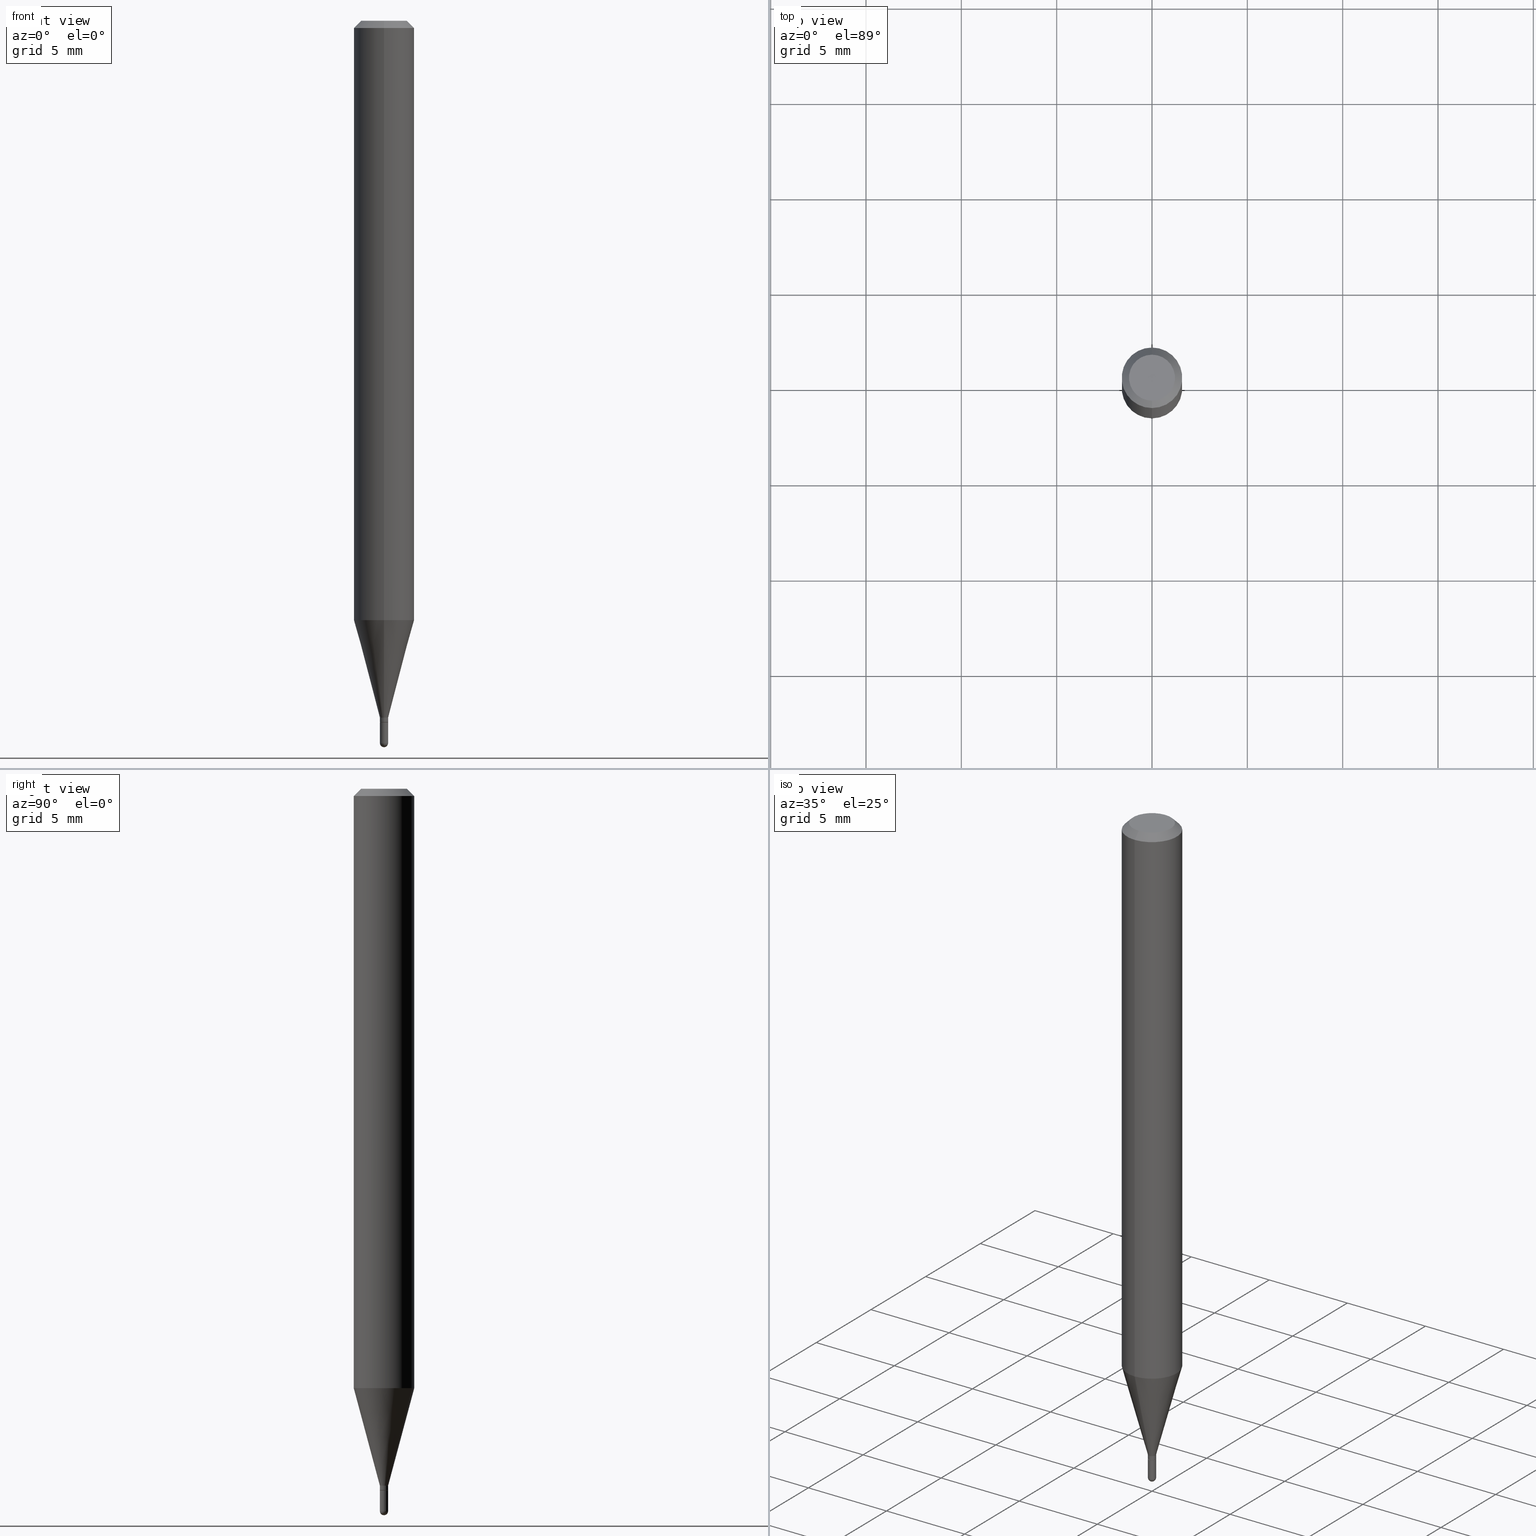
[diagram: canonical four-view strip — front | top / right | iso, engineering-drawing reading convention]
A machine part, canonical four-view strip (front | top / right | iso — engineering-drawing reading convention). The complete STEP part file that produces these views, byte-faithful:
ISO-10303-21;
HEADER;
FILE_DESCRIPTION (( 'STEP AP203' ),
    '1' );
FILE_NAME ('03115.STEP',
    '2024-03-08T18:14:07',
    ( '' ),
    ( '' ),
    'SwSTEP 2.0',
    'SolidWorks 2023',
    '' );
FILE_SCHEMA (( 'CONFIG_CONTROL_DESIGN' ));
ENDSEC;

DATA;
#1 = DIRECTION ( 'NONE',  ( 1.000000000000000000, -6.982962677686274599E-15, 0.000000000000000000 ) ) ;
#2 = ORIENTED_EDGE ( 'NONE', *, *, #491, .T. ) ;
#3 = LINE ( 'NONE', #236, #309 ) ;
#4 = ADVANCED_FACE ( 'NONE', ( #253 ), #439, .T. ) ;
#5 = VERTEX_POINT ( 'NONE', #323 ) ;
#6 = VECTOR ( 'NONE', #143, 39.37007874015748854 ) ;
#7 = ORIENTED_EDGE ( 'NONE', *, *, #223, .T. ) ;
#8 = LOCAL_TIME ( 13, 14, 7.000000000000000000, #268 ) ;
#9 = DIRECTION ( 'NONE',  ( -2.445459971718244803E-29, 3.491493990302560829E-15, 1.000000000000000000 ) ) ;
#10 = PLANE ( 'NONE',  #308 ) ;
#11 = ORIENTED_EDGE ( 'NONE', *, *, #96, .T. ) ;
#12 = CC_DESIGN_DATE_AND_TIME_ASSIGNMENT ( #256, #67, ( #104 ) ) ;
#13 = ORIENTED_EDGE ( 'NONE', *, *, #132, .T. ) ;
#14 = VECTOR ( 'NONE', #458, 39.37007874015748854 ) ;
#15 = CONICAL_SURFACE ( 'NONE', #339, 0.008000000000000000167, 0.7853981633974739252 ) ;
#16 = VERTEX_POINT ( 'NONE', #444 ) ;
#17 = EDGE_CURVE ( 'NONE', #5, #16, #453, .T. ) ;
#18 = ORIENTED_EDGE ( 'NONE', *, *, #119, .F. ) ;
#19 = LINE ( 'NONE', #295, #352 ) ;
#20 = APPROVAL_PERSON_ORGANIZATION ( #144, #61, #300 ) ;
#21 = COORDINATED_UNIVERSAL_TIME_OFFSET ( 5, 0, .BEHIND. ) ;
#22 = CARTESIAN_POINT ( 'NONE',  ( -5.935518276029754545E-17, -0.008500000000004949777, -1.439000000000000057 ) ) ;
#23 = EDGE_CURVE ( 'NONE', #312, #440, #328, .T. ) ;
#24 = PERSON_AND_ORGANIZATION_ROLE ( 'design_owner' ) ;
#25 = LINE ( 'NONE', #382, #362 ) ;
#26 = EDGE_LOOP ( 'NONE', ( #321, #97, #237, #281 ) ) ;
#27 = DIRECTION ( 'NONE',  ( 1.000000000000000000, -6.982962677686265922E-15, 4.883557194083112901E-29 ) ) ;
#28 = CIRCLE ( 'NONE', #320, 0.008500000000000000611 ) ;
#29 = CARTESIAN_POINT ( 'NONE',  ( 4.440892098500930859E-16, 0.06249999999999995143, -0.01499999999999997863 ) ) ;
#30 = DIRECTION ( 'NONE',  ( 6.982962677686265922E-15, 1.000000000000000000, -3.483106191921935554E-15 ) ) ;
#31 = DIRECTION ( 'NONE',  ( -2.445468806185136597E-29, 3.491481338843145583E-15, 1.000000000000000000 ) ) ;
#32 = ORIENTED_EDGE ( 'NONE', *, *, #289, .T. ) ;
#33 = AXIS2_PLACEMENT_3D ( 'NONE', #247, #335, #488 ) ;
#34 = CARTESIAN_POINT ( 'NONE',  ( 3.519016899302555571E-29, -5.024259852045384731E-15, -1.439000000000000057 ) ) ;
#35 = AXIS2_PLACEMENT_3D ( 'NONE', #305, #469, #118 ) ;
#36 = ORIENTED_EDGE ( 'NONE', *, *, #434, .F. ) ;
#37 = EDGE_CURVE ( 'NONE', #288, #427, #460, .T. ) ;
#38 = FACE_OUTER_BOUND ( 'NONE', #197, .T. ) ;
#39 = VERTEX_POINT ( 'NONE', #287 ) ;
#40 = EDGE_CURVE ( 'NONE', #261, #391, #370, .T. ) ;
#41 = PLANE ( 'NONE',  #260 ) ;
#42 = VERTEX_POINT ( 'NONE', #93 ) ;
#43 = AXIS2_PLACEMENT_3D ( 'NONE', #34, #472, #438 ) ;
#44 = ORIENTED_EDGE ( 'NONE', *, *, #448, .T. ) ;
#45 = APPROVAL_PERSON_ORGANIZATION ( #136, #509, #296 ) ;
#46 =( CONVERSION_BASED_UNIT ( 'INCH', #286 ) LENGTH_UNIT ( ) NAMED_UNIT ( #437 ) );
#47 = EDGE_LOOP ( 'NONE', ( #135, #158 ) ) ;
#48 = EDGE_CURVE ( 'NONE', #16, #5, #447, .T. ) ;
#49 = ADVANCED_BREP_SHAPE_REPRESENTATION ( '03115', ( #217, #213, #504 ), #406 ) ;
#50 = FACE_OUTER_BOUND ( 'NONE', #218, .T. ) ;
#51 = DIRECTION ( 'NONE',  ( -6.982962677686265922E-15, -1.000000000000000000, 4.370956789862821150E-15 ) ) ;
#52 = ORIENTED_EDGE ( 'NONE', *, *, #119, .T. ) ;
#53 = EDGE_LOOP ( 'NONE', ( #480, #179, #108, #220 ) ) ;
#54 = AXIS2_PLACEMENT_3D ( 'NONE', #410, #172, #279 ) ;
#55 = CIRCLE ( 'NONE', #486, 0.008499999999999924283 ) ;
#56 = ORIENTED_EDGE ( 'NONE', *, *, #388, .T. ) ;
#57 = ADVANCED_FACE ( 'NONE', ( #285 ), #10, .F. ) ;
#58 = APPROVAL_STATUS ( 'not_yet_approved' ) ;
#59 = DIRECTION ( 'NONE',  ( -6.982962677686265922E-15, -1.000000000000000000, 3.483106191921935554E-15 ) ) ;
#60 = PERSON_AND_ORGANIZATION_ROLE ( 'design_supplier' ) ;
#61 = APPROVAL ( #109, 'UNSPECIFIED' ) ;
#62 = CARTESIAN_POINT ( 'NONE',  ( -5.856613589596461152E-45, 8.361752548839639788E-31, 2.394892436322091243E-16 ) ) ;
#63 = CARTESIAN_POINT ( 'NONE',  ( 6.039613253964316839E-17, 0.008499999999994900524, -1.439000000000000057 ) ) ;
#64 = CIRCLE ( 'NONE', #54, 0.008499999999999924283 ) ;
#65 = ORIENTED_EDGE ( 'NONE', *, *, #360, .T. ) ;
#66 = CONICAL_SURFACE ( 'NONE', #354, 0.06250000000000000000, 0.7853981633974483900 ) ;
#67 = DATE_TIME_ROLE ( 'creation_date' ) ;
#68 = DIRECTION ( 'NONE',  ( -2.445459971718245083E-29, 3.491493990302560829E-15, 1.000000000000000000 ) ) ;
#69 = EDGE_CURVE ( 'NONE', #427, #288, #99, .T. ) ;
#70 = ORIENTED_EDGE ( 'NONE', *, *, #17, .T. ) ;
#71 = DIRECTION ( 'NONE',  ( -2.445468806185136597E-29, 3.491481338843145583E-15, 1.000000000000000000 ) ) ;
#72 = CARTESIAN_POINT ( 'NONE',  ( -4.364351673553615448E-16, -0.06250000000000432987, -1.237469256391281025 ) ) ;
#73 = AXIS2_PLACEMENT_3D ( 'NONE', #224, #215, #149 ) ;
#74 = CONICAL_SURFACE ( 'NONE', #479, 0.06250000000000000000, 0.7853981633974483900 ) ;
#75 = DIRECTION ( 'NONE',  ( 1.000000000000000000, -6.982962677686273021E-15, 0.000000000000000000 ) ) ;
#76 = CARTESIAN_POINT ( 'NONE',  ( -4.287811248607203282E-16, -0.06250000000000005551, -0.01499999999999954321 ) ) ;
#77 = ORIENTED_EDGE ( 'NONE', *, *, #69, .F. ) ;
#78 = FACE_OUTER_BOUND ( 'NONE', #442, .T. ) ;
#79 = ORIENTED_EDGE ( 'NONE', *, *, #448, .F. ) ;
#80 = EDGE_CURVE ( 'NONE', #368, #232, #81, .T. ) ;
#81 = CIRCLE ( 'NONE', #502, 0.04749999999999999362 ) ;
#82 = CARTESIAN_POINT ( 'NONE',  ( -5.935518276033273604E-17, -0.008499999999999924283, 2.967769891757150736E-17 ) ) ;
#83 = CIRCLE ( 'NONE', #35, 0.06250000000000000000 ) ;
#84 = EDGE_LOOP ( 'NONE', ( #274, #450, #361, #44, #190 ) ) ;
#85 = CARTESIAN_POINT ( 'NONE',  ( -0.008500000000000000611, -5.072954305894525412E-15, -1.449000000000000066 ) ) ;
#86 = EDGE_LOOP ( 'NONE', ( #195, #183, #251, #315 ) ) ;
#87 = CARTESIAN_POINT ( 'NONE',  ( -5.935518276029620192E-17, -0.008500000000005121514, -1.491500000000000270 ) ) ;
#88 = CARTESIAN_POINT ( 'NONE',  ( 3.026181532736820880E-29, -4.320616471874337683E-15, -1.237469256391281247 ) ) ;
#89 = EDGE_CURVE ( 'NONE', #452, #120, #64, .T. ) ;
#90 = CIRCLE ( 'NONE', #234, 0.008500000000000002345 ) ;
#91 = DIRECTION ( 'NONE',  ( -2.445459971718245083E-29, 3.491493990302560829E-15, 1.000000000000000000 ) ) ;
#92 = DIRECTION ( 'NONE',  ( -2.445459971718245083E-29, 3.491493990302560829E-15, 1.000000000000000000 ) ) ;
#93 = CARTESIAN_POINT ( 'NONE',  ( -5.586370142145469855E-17, -0.008000000000005060355, -1.449000000000000066 ) ) ;
#94 = DIRECTION ( 'NONE',  ( -2.445459971718245083E-29, 3.491493990302560829E-15, 1.000000000000000000 ) ) ;
#95 = DIRECTION ( 'NONE',  ( -1.000000000000000000, 6.982962677686265922E-15, -4.883557194083112340E-29 ) ) ;
#96 = EDGE_CURVE ( 'NONE', #146, #39, #243, .T. ) ;
#97 = ORIENTED_EDGE ( 'NONE', *, *, #426, .T. ) ;
#98 = DIRECTION ( 'NONE',  ( -2.445459971718245083E-29, 3.491493990302560829E-15, 1.000000000000000000 ) ) ;
#99 = CIRCLE ( 'NONE', #282, 0.06250000000000000000 ) ;
#100 = CC_DESIGN_APPROVAL ( #509, ( #104 ) ) ;
#101 = DATE_AND_TIME ( #177, #176 ) ;
#102 = LINE ( 'NONE', #22, #14 ) ;
#103 = CYLINDRICAL_SURFACE ( 'NONE', #161, 0.06250000000000000000 ) ;
#104 = PRODUCT_DEFINITION ( 'UNKNOWN', '', #470, #134 ) ;
#105 = CARTESIAN_POINT ( 'NONE',  ( 3.647416724425131194E-29, -5.207544416884551827E-15, -1.491500000000000270 ) ) ;
#106 = VECTOR ( 'NONE', #94, 39.37007874015748143 ) ;
#107 = CARTESIAN_POINT ( 'NONE',  ( -0.008500000000000002345, -5.072954305894525412E-15, -1.491500000000000270 ) ) ;
#108 = ORIENTED_EDGE ( 'NONE', *, *, #259, .T. ) ;
#109 = APPROVAL_STATUS ( 'not_yet_approved' ) ;
#110 = CARTESIAN_POINT ( 'NONE',  ( -5.586370142145469855E-17, -0.008000000000005060355, -1.449000000000000066 ) ) ;
#111 = ADVANCED_FACE ( 'NONE', ( #201 ), #419, .T. ) ;
#112 = DIRECTION ( 'NONE',  ( 1.000000000000000000, -7.105427357601001070E-15, 4.926315508542082329E-29 ) ) ;
#113 = AXIS2_PLACEMENT_3D ( 'NONE', #202, #208, #367 ) ;
#114 = CONICAL_SURFACE ( 'NONE', #43, 0.008499999999999924283, 0.2617993877991505181 ) ;
#115 = CARTESIAN_POINT ( 'NONE',  ( 0.008500000000000000611, -5.118511642744051990E-15, -1.449000000000000066 ) ) ;
#116 = LINE ( 'NONE', #82, #329 ) ;
#117 = EDGE_LOOP ( 'NONE', ( #400, #52, #473, #36 ) ) ;
#118 = DIRECTION ( 'NONE',  ( -6.982962677686265922E-15, -1.000000000000000000, 4.370956789862821150E-15 ) ) ;
#119 = EDGE_CURVE ( 'NONE', #5, #120, #495, .T. ) ;
#120 = VERTEX_POINT ( 'NONE', #184 ) ;
#121 = CARTESIAN_POINT ( 'NONE',  ( 0.008500000000000002345, -5.192705621194468652E-15, -1.491500000000000270 ) ) ;
#122 = CC_DESIGN_APPROVAL ( #61, ( #470 ) ) ;
#123 = ORIENTED_EDGE ( 'NONE', *, *, #360, .F. ) ;
#124 = UNCERTAINTY_MEASURE_WITH_UNIT (LENGTH_MEASURE( 1.000000000000000082E-05 ), #46, 'distance_accuracy_value', 'NONE');
#125 = DIRECTION ( 'NONE',  ( -6.982962677686266711E-15, -1.000000000000000000, 3.491493990302561618E-15 ) ) ;
#126 = LINE ( 'NONE', #369, #167 ) ;
#127 = DIRECTION ( 'NONE',  ( -6.982962677686266711E-15, -1.000000000000000000, 0.000000000000000000 ) ) ;
#128 = CIRCLE ( 'NONE', #175, 0.008500000000000000611 ) ;
#129 = AXIS2_PLACEMENT_3D ( 'NONE', #159, #317, #474 ) ;
#130 = DIRECTION ( 'NONE',  ( -2.445459971718245083E-29, 3.491493990302560829E-15, 1.000000000000000000 ) ) ;
#131 = CARTESIAN_POINT ( 'NONE',  ( 3.543471499019737131E-29, -5.059174791948411151E-15, -1.449000000000000066 ) ) ;
#132 = EDGE_CURVE ( 'NONE', #146, #427, #19, .T. ) ;
#133 = CARTESIAN_POINT ( 'NONE',  ( -0.008500000000000002345, 6.039613253960853246E-17, -4.181094826716670944E-31 ) ) ;
#134 = DESIGN_CONTEXT ( 'detailed design', #278, 'design' ) ;
#135 = ORIENTED_EDGE ( 'NONE', *, *, #151, .T. ) ;
#136 = PERSON_AND_ORGANIZATION ( #371, #338 ) ;
#137 = DIRECTION ( 'NONE',  ( -2.445459971718245083E-29, 3.491493990302560829E-15, 1.000000000000000000 ) ) ;
#138 = VECTOR ( 'NONE', #212, 39.37007874015748143 ) ;
#139 = AXIS2_PLACEMENT_3D ( 'NONE', #131, #9, #206 ) ;
#140 = DIRECTION ( 'NONE',  ( 0.000000000000000000, 0.000000000000000000, 1.000000000000000000 ) ) ;
#141 = LINE ( 'NONE', #110, #138 ) ;
#142 = PRODUCT_RELATED_PRODUCT_CATEGORY ( 'detail', '', ( #316 ) ) ;
#143 = DIRECTION ( 'NONE',  ( 1.839019923739601893E-15, 0.2588190451025252359, 0.9659258262890670910 ) ) ;
#144 = PERSON_AND_ORGANIZATION ( #371, #338 ) ;
#145 = FACE_OUTER_BOUND ( 'NONE', #271, .T. ) ;
#146 = VERTEX_POINT ( 'NONE', #72 ) ;
#147 = CIRCLE ( 'NONE', #396, 0.008000000000000000167 ) ;
#148 = PERSON_AND_ORGANIZATION ( #371, #338 ) ;
#149 = DIRECTION ( 'NONE',  ( -6.982962677686266711E-15, -1.000000000000000000, 0.000000000000000000 ) ) ;
#150 = DIRECTION ( 'NONE',  ( -2.445459971718245083E-29, 3.491493990302560829E-15, 1.000000000000000000 ) ) ;
#151 = EDGE_CURVE ( 'NONE', #412, #391, #128, .T. ) ;
#152 = CARTESIAN_POINT ( 'NONE',  ( 3.668189957577309261E-31, -5.237240985453757895E-17, -0.01499999999999976179 ) ) ;
#153 = CIRCLE ( 'NONE', #420, 0.04749999999999999362 ) ;
#154 = CIRCLE ( 'NONE', #283, 0.008500000000000002345 ) ;
#155 = DIRECTION ( 'NONE',  ( -6.982962677686266711E-15, -1.000000000000000000, 0.000000000000000000 ) ) ;
#156 = ORIENTED_EDGE ( 'NONE', *, *, #23, .F. ) ;
#157 = CARTESIAN_POINT ( 'NONE',  ( 3.668189957577309261E-31, -5.237240985453757895E-17, -0.01499999999999976179 ) ) ;
#158 = ORIENTED_EDGE ( 'NONE', *, *, #385, .T. ) ;
#159 = CARTESIAN_POINT ( 'NONE',  ( 0.000000000000000000, 0.000000000000000000, 0.000000000000000000 ) ) ;
#160 = ORIENTED_EDGE ( 'NONE', *, *, #151, .F. ) ;
#161 = AXIS2_PLACEMENT_3D ( 'NONE', #187, #137, #341 ) ;
#162 = EDGE_LOOP ( 'NONE', ( #11, #2, #77, #242 ) ) ;
#163 = LINE ( 'NONE', #366, #106 ) ;
#164 = ORIENTED_EDGE ( 'NONE', *, *, #403, .F. ) ;
#165 = ADVANCED_FACE ( 'NONE', ( #343 ), #103, .T. ) ;
#166 = ORIENTED_EDGE ( 'NONE', *, *, #238, .T. ) ;
#167 = VECTOR ( 'NONE', #199, 39.37007874015748143 ) ;
#168 = ORIENTED_EDGE ( 'NONE', *, *, #48, .F. ) ;
#169 = CC_DESIGN_PERSON_AND_ORGANIZATION_ASSIGNMENT ( #456, #372, ( #470 ) ) ;
#170 = EDGE_LOOP ( 'NONE', ( #436, #424, #13, #331 ) ) ;
#171 = APPROVAL_DATE_TIME ( #209, #61 ) ;
#172 = DIRECTION ( 'NONE',  ( -2.445459971718245083E-29, 3.491493990302560829E-15, 1.000000000000000000 ) ) ;
#173 = PERSON_AND_ORGANIZATION ( #371, #338 ) ;
#174 = CARTESIAN_POINT ( 'NONE',  ( 0.000000000000000000, 0.000000000000000000, 0.000000000000000000 ) ) ;
#175 = AXIS2_PLACEMENT_3D ( 'NONE', #490, #219, #178 ) ;
#176 = LOCAL_TIME ( 13, 14, 7.000000000000000000, #21 ) ;
#177 = CALENDAR_DATE ( 2024, 8, 3 ) ;
#178 = DIRECTION ( 'NONE',  ( 1.000000000000000000, -6.982962677686274599E-15, 0.000000000000000000 ) ) ;
#179 = ORIENTED_EDGE ( 'NONE', *, *, #403, .T. ) ;
#180 = COORDINATED_UNIVERSAL_TIME_OFFSET ( 5, 0, .BEHIND. ) ;
#181 = DIRECTION ( 'NONE',  ( -2.445459971718245083E-29, 3.491493990302560829E-15, 1.000000000000000000 ) ) ;
#182 = PRODUCT_DEFINITION_SHAPE ( 'NONE', 'NONE',  #104 ) ;
#183 = ORIENTED_EDGE ( 'NONE', *, *, #289, .F. ) ;
#184 = CARTESIAN_POINT ( 'NONE',  ( 2.522426711948681826E-16, 0.008499999999994900524, -1.439000000000000057 ) ) ;
#185 = APPROVAL_PERSON_ORGANIZATION ( #235, #379, #226 ) ;
#186 = CC_DESIGN_PERSON_AND_ORGANIZATION_ASSIGNMENT ( #173, #337, ( #511 ) ) ;
#187 = CARTESIAN_POINT ( 'NONE',  ( 0.000000000000000000, 0.000000000000000000, 0.000000000000000000 ) ) ;
#188 = FACE_OUTER_BOUND ( 'NONE', #299, .T. ) ;
#189 = DIRECTION ( 'NONE',  ( 1.000000000000000000, -6.982962677686273021E-15, 0.000000000000000000 ) ) ;
#190 = ORIENTED_EDGE ( 'NONE', *, *, #385, .F. ) ;
#191 = ADVANCED_FACE ( 'NONE', ( #346 ), #465, .T. ) ;
#192 = AXIS2_PLACEMENT_3D ( 'NONE', #174, #378, #292 ) ;
#193 = AXIS2_PLACEMENT_3D ( 'NONE', #356, #196, #441 ) ;
#194 = FACE_OUTER_BOUND ( 'NONE', #86, .T. ) ;
#195 = ORIENTED_EDGE ( 'NONE', *, *, #426, .F. ) ;
#196 = DIRECTION ( 'NONE',  ( -2.445459971718245083E-29, 3.491493990302560829E-15, 1.000000000000000000 ) ) ;
#197 = EDGE_LOOP ( 'NONE', ( #344, #166, #383, #446 ) ) ;
#198 = ORIENTED_EDGE ( 'NONE', *, *, #263, .F. ) ;
#199 = DIRECTION ( 'NONE',  ( -2.445468806185136877E-29, 3.491481338843145188E-15, 1.000000000000000000 ) ) ;
#200 = CC_DESIGN_PERSON_AND_ORGANIZATION_ASSIGNMENT ( #148, #464, ( #104 ) ) ;
#201 = FACE_OUTER_BOUND ( 'NONE', #319, .T. ) ;
#202 = CARTESIAN_POINT ( 'NONE',  ( 3.668189957577309261E-31, -5.237240985453757895E-17, -0.01499999999999976179 ) ) ;
#203 = ORIENTED_EDGE ( 'NONE', *, *, #429, .F. ) ;
#204 = ADVANCED_FACE ( 'NONE', ( #266 ), #462, .T. ) ;
#205 = ORIENTED_EDGE ( 'NONE', *, *, #443, .F. ) ;
#206 = DIRECTION ( 'NONE',  ( -6.982962677686265922E-15, -1.000000000000000000, 3.491493990302560829E-15 ) ) ;
#207 = VECTOR ( 'NONE', #415, 39.37007874015748143 ) ;
#208 = DIRECTION ( 'NONE',  ( -2.445459971718245083E-29, 3.491493990302560829E-15, 1.000000000000000000 ) ) ;
#209 = DATE_AND_TIME ( #416, #244 ) ;
#210 = CARTESIAN_POINT ( 'NONE',  ( -5.856613589596461152E-45, 8.361752548839639788E-31, 2.394892436322091243E-16 ) ) ;
#211 = ADVANCED_FACE ( 'NONE', ( #425 ), #500, .T. ) ;
#212 = DIRECTION ( 'NONE',  ( -4.937700262164674260E-15, -0.7071067811865632269, 0.7071067811865319186 ) ) ;
#213 = MANIFOLD_SOLID_BREP ( 'Body-Move/Copy2[2]', #258 ) ;
#214 = PERSON_AND_ORGANIZATION ( #371, #338 ) ;
#215 = DIRECTION ( 'NONE',  ( -2.445459971718245083E-29, 3.491493990302560829E-15, 1.000000000000000000 ) ) ;
#216 = AXIS2_PLACEMENT_3D ( 'NONE', #330, #98, #327 ) ;
#217 = MANIFOLD_SOLID_BREP ( 'Body-Move/Copy2[1]', #307 ) ;
#218 = EDGE_LOOP ( 'NONE', ( #353, #264, #168, #198 ) ) ;
#219 = DIRECTION ( 'NONE',  ( -2.445468806185136597E-29, 3.491481338843145583E-15, 1.000000000000000000 ) ) ;
#220 = ORIENTED_EDGE ( 'NONE', *, *, #411, .F. ) ;
#221 = MECHANICAL_CONTEXT ( 'NONE', #324, 'mechanical' ) ;
#222 = CYLINDRICAL_SURFACE ( 'NONE', #377, 0.008500000000000002345 ) ;
#223 = EDGE_CURVE ( 'NONE', #120, #39, #506, .T. ) ;
#224 = CARTESIAN_POINT ( 'NONE',  ( 3.543471499019737131E-29, -5.059174791948411151E-15, -1.449000000000000066 ) ) ;
#225 = CC_DESIGN_SECURITY_CLASSIFICATION ( #511, ( #470 ) ) ;
#226 = APPROVAL_ROLE ( '' ) ;
#227 = DIRECTION ( 'NONE',  ( 2.445459971718245083E-29, -3.491493990302560829E-15, -1.000000000000000000 ) ) ;
#228 = CARTESIAN_POINT ( 'NONE',  ( 3.646689833079329078E-29, -5.208585366663827303E-15, -1.491500000000000270 ) ) ;
#229 = CC_DESIGN_PERSON_AND_ORGANIZATION_ASSIGNMENT ( #214, #24, ( #316 ) ) ;
#230 = ORIENTED_EDGE ( 'NONE', *, *, #238, .F. ) ;
#231 = FACE_OUTER_BOUND ( 'NONE', #84, .T. ) ;
#232 = VERTEX_POINT ( 'NONE', #298 ) ;
#233 = AXIS2_PLACEMENT_3D ( 'NONE', #457, #27, #384 ) ;
#234 = AXIS2_PLACEMENT_3D ( 'NONE', #313, #31, #189 ) ;
#235 = PERSON_AND_ORGANIZATION ( #371, #338 ) ;
#236 = CARTESIAN_POINT ( 'NONE',  ( 4.364351673553919652E-16, 0.06249999999999995143, -0.01499999999999997863 ) ) ;
#237 = ORIENTED_EDGE ( 'NONE', *, *, #69, .T. ) ;
#238 = EDGE_CURVE ( 'NONE', #333, #42, #376, .T. ) ;
#239 = DIRECTION ( 'NONE',  ( 6.982962677686265922E-15, 1.000000000000000000, -3.483106191921935554E-15 ) ) ;
#240 = ORIENTED_EDGE ( 'NONE', *, *, #284, .F. ) ;
#241 = CARTESIAN_POINT ( 'NONE',  ( 3.543471499019737131E-29, -5.059174791948411151E-15, -1.449000000000000066 ) ) ;
#242 = ORIENTED_EDGE ( 'NONE', *, *, #132, .F. ) ;
#243 = CIRCLE ( 'NONE', #347, 0.06250000000000000000 ) ;
#244 = LOCAL_TIME ( 13, 14, 7.000000000000000000, #265 ) ;
#245 = DIRECTION ( 'NONE',  ( -2.445459971718245083E-29, 3.491493990302560829E-15, 1.000000000000000000 ) ) ;
#246 = EDGE_CURVE ( 'NONE', #333, #5, #25, .T. ) ;
#247 = CARTESIAN_POINT ( 'NONE',  ( 3.519016899302555571E-29, -5.024259852045384731E-15, -1.439000000000000057 ) ) ;
#248 = CARTESIAN_POINT ( 'NONE',  ( -5.935518276029754545E-17, -0.008500000000004949777, -1.439000000000000057 ) ) ;
#249 = CARTESIAN_POINT ( 'NONE',  ( 5.935518276036870316E-17, 0.008499999999994942157, -1.449000000000000066 ) ) ;
#250 = CYLINDRICAL_SURFACE ( 'NONE', #461, 0.06250000000000000000 ) ;
#251 = ORIENTED_EDGE ( 'NONE', *, *, #318, .T. ) ;
#252 = DIRECTION ( 'NONE',  ( -6.982962677686266711E-15, -1.000000000000000000, 0.000000000000000000 ) ) ;
#253 = FACE_OUTER_BOUND ( 'NONE', #53, .T. ) ;
#254 = CARTESIAN_POINT ( 'NONE',  ( 0.000000000000000000, 0.000000000000000000, 0.000000000000000000 ) ) ;
#255 = DIRECTION ( 'NONE',  ( 1.000000000000000000, -6.982962677686265922E-15, 4.883557194083112901E-29 ) ) ;
#256 = DATE_AND_TIME ( #342, #275 ) ;
#257 = DIRECTION ( 'NONE',  ( -6.982962677686266711E-15, -1.000000000000000000, 3.491493990302561618E-15 ) ) ;
#258 = CLOSED_SHELL ( 'NONE', ( #191, #505, #392, #165, #325, #4, #499, #297, #397, #481, #355, #204 ) ) ;
#259 = EDGE_CURVE ( 'NONE', #452, #146, #102, .T. ) ;
#260 = AXIS2_PLACEMENT_3D ( 'NONE', #467, #350, #306 ) ;
#261 = VERTEX_POINT ( 'NONE', #107 ) ;
#262 = CARTESIAN_POINT ( 'NONE',  ( 0.000000000000000000, 0.000000000000000000, 0.000000000000000000 ) ) ;
#263 = EDGE_CURVE ( 'NONE', #42, #16, #141, .T. ) ;
#264 = ORIENTED_EDGE ( 'NONE', *, *, #246, .T. ) ;
#265 = COORDINATED_UNIVERSAL_TIME_OFFSET ( 5, 0, .BEHIND. ) ;
#266 = FACE_OUTER_BOUND ( 'NONE', #463, .T. ) ;
#267 = DIRECTION ( 'NONE',  ( -2.445468806185136597E-29, 3.491481338843145583E-15, 1.000000000000000000 ) ) ;
#268 = COORDINATED_UNIVERSAL_TIME_OFFSET ( 5, 0, .BEHIND. ) ;
#269 = DIRECTION ( 'NONE',  ( 2.445459971718245083E-29, -3.491493990302560829E-15, -1.000000000000000000 ) ) ;
#270 = CYLINDRICAL_SURFACE ( 'NONE', #129, 0.008500000000000002345 ) ;
#271 = EDGE_LOOP ( 'NONE', ( #475, #478, #160, #79, #56 ) ) ;
#272 = DATE_AND_TIME ( #294, #414 ) ;
#273 = CARTESIAN_POINT ( 'NONE',  ( -4.364351673553912750E-16, -0.06250000000000005551, -0.01499999999999954321 ) ) ;
#274 = ORIENTED_EDGE ( 'NONE', *, *, #40, .F. ) ;
#275 = LOCAL_TIME ( 13, 14, 7.000000000000000000, #180 ) ;
#276 = DIRECTION ( 'NONE',  ( 4.937700262164548042E-15, 0.7071067811865451302, -0.7071067811865499042 ) ) ;
#277 = ORIENTED_EDGE ( 'NONE', *, *, #434, .T. ) ;
#278 = APPLICATION_CONTEXT ( 'configuration controlled 3d designs of mechanical parts and assemblies' ) ;
#279 = DIRECTION ( 'NONE',  ( -6.982962677686266711E-15, -1.000000000000000000, 0.000000000000000000 ) ) ;
#280 = DIRECTION ( 'NONE',  ( -2.445459971718245083E-29, 3.491493990302560829E-15, 1.000000000000000000 ) ) ;
#281 = ORIENTED_EDGE ( 'NONE', *, *, #318, .F. ) ;
#282 = AXIS2_PLACEMENT_3D ( 'NONE', #489, #130, #59 ) ;
#283 = AXIS2_PLACEMENT_3D ( 'NONE', #431, #435, #390 ) ;
#284 = EDGE_CURVE ( 'NONE', #440, #303, #432, .T. ) ;
#285 = FACE_OUTER_BOUND ( 'NONE', #47, .T. ) ;
#286 = LENGTH_MEASURE_WITH_UNIT ( LENGTH_MEASURE( 0.02539999999999999897 ), #407 );
#287 = CARTESIAN_POINT ( 'NONE',  ( 4.440892098500927901E-16, 0.06249999999999569095, -1.237469256391281691 ) ) ;
#288 = VERTEX_POINT ( 'NONE', #29 ) ;
#289 = EDGE_CURVE ( 'NONE', #232, #368, #153, .T. ) ;
#290 = AXIS2_PLACEMENT_3D ( 'NONE', #262, #496, #417 ) ;
#291 = VECTOR ( 'NONE', #311, 39.37007874015748143 ) ;
#292 = DIRECTION ( 'NONE',  ( -6.982962677686266711E-15, -1.000000000000000000, 3.491493990302561223E-15 ) ) ;
#293 = ADVANCED_FACE ( 'NONE', ( #145 ), #222, .T. ) ;
#294 = CALENDAR_DATE ( 2024, 8, 3 ) ;
#295 = CARTESIAN_POINT ( 'NONE',  ( -4.364351673553916201E-16, -0.06250000000000000000, 2.182183743939100518E-16 ) ) ;
#296 = APPROVAL_ROLE ( '' ) ;
#297 = ADVANCED_FACE ( 'NONE', ( #194 ), #74, .T. ) ;
#298 = CARTESIAN_POINT ( 'NONE',  ( 3.840629472727447874E-16, 0.04749999999999999362, 7.364327909283752044E-17 ) ) ;
#299 = EDGE_LOOP ( 'NONE', ( #32, #459 ) ) ;
#300 = APPROVAL_ROLE ( '' ) ;
#301 = DIRECTION ( 'NONE',  ( -2.445459971718245083E-29, 3.491493990302560829E-15, 1.000000000000000000 ) ) ;
#302 = AXIS2_PLACEMENT_3D ( 'NONE', #483, #91, #365 ) ;
#303 = VERTEX_POINT ( 'NONE', #121 ) ;
#304 = CARTESIAN_POINT ( 'NONE',  ( 6.039613253960797780E-17, 0.008499999999999924283, -2.967769891757150736E-17 ) ) ;
#305 = CARTESIAN_POINT ( 'NONE',  ( 3.026181532736820880E-29, -4.320616471874337683E-15, -1.237469256391281247 ) ) ;
#306 = DIRECTION ( 'NONE',  ( 6.982962677686265922E-15, 1.000000000000000000, -3.491493990302560829E-15 ) ) ;
#307 = CLOSED_SHELL ( 'NONE', ( #293, #111, #57, #211, #340 ) ) ;
#308 = AXIS2_PLACEMENT_3D ( 'NONE', #249, #449, #485 ) ;
#309 = VECTOR ( 'NONE', #276, 39.37007874015748143 ) ;
#310 = APPROVAL_STATUS ( 'not_yet_approved' ) ;
#311 = DIRECTION ( 'NONE',  ( -4.851104656540964275E-15, -0.7071067811865500152, -0.7071067811865450192 ) ) ;
#312 = VERTEX_POINT ( 'NONE', #399 ) ;
#313 = CARTESIAN_POINT ( 'NONE',  ( 3.647416724425131194E-29, -5.207544416884551827E-15, -1.491500000000000270 ) ) ;
#314 = EDGE_CURVE ( 'NONE', #395, #261, #154, .T. ) ;
#315 = ORIENTED_EDGE ( 'NONE', *, *, #37, .T. ) ;
#316 = PRODUCT ( '03115', '03115', '', ( #221 ) ) ;
#317 = DIRECTION ( 'NONE',  ( -2.445468806185136597E-29, 3.491481338843145583E-15, 1.000000000000000000 ) ) ;
#318 = EDGE_CURVE ( 'NONE', #232, #288, #3, .T. ) ;
#319 = EDGE_LOOP ( 'NONE', ( #156, #65, #497, #240 ) ) ;
#320 = AXIS2_PLACEMENT_3D ( 'NONE', #389, #267, #1 ) ;
#321 = ORIENTED_EDGE ( 'NONE', *, *, #80, .F. ) ;
#322 = FACE_OUTER_BOUND ( 'NONE', #170, .T. ) ;
#323 = CARTESIAN_POINT ( 'NONE',  ( 6.039613253964319304E-17, 0.008499999999994839808, -1.448500000000000121 ) ) ;
#324 = APPLICATION_CONTEXT ( 'configuration controlled 3d designs of mechanical parts and assemblies' ) ;
#325 = ADVANCED_FACE ( 'NONE', ( #78 ), #114, .T. ) ;
#326 =( NAMED_UNIT ( * ) PLANE_ANGLE_UNIT ( ) SI_UNIT ( $, .RADIAN. ) );
#327 = DIRECTION ( 'NONE',  ( -6.982962677686266711E-15, -1.000000000000000000, 0.000000000000000000 ) ) ;
#328 = CIRCLE ( 'NONE', #336, 0.008499999999999827138 ) ;
#329 = VECTOR ( 'NONE', #245, 39.37007874015748143 ) ;
#330 = CARTESIAN_POINT ( 'NONE',  ( 3.542248769033877884E-29, -5.057429044953259988E-15, -1.448500000000000121 ) ) ;
#331 = ORIENTED_EDGE ( 'NONE', *, *, #37, .F. ) ;
#332 = PLANE ( 'NONE',  #139 ) ;
#333 = VERTEX_POINT ( 'NONE', #508 ) ;
#334 = PERSON_AND_ORGANIZATION ( #371, #338 ) ;
#335 = DIRECTION ( 'NONE',  ( -2.445459971718245083E-29, 3.491493990302560829E-15, 1.000000000000000000 ) ) ;
#336 = AXIS2_PLACEMENT_3D ( 'NONE', #408, #95, #127 ) ;
#337 = PERSON_AND_ORGANIZATION_ROLE ( 'classification_officer' ) ;
#338 = ORGANIZATION ( 'UNSPECIFIED', 'UNSPECIFIED', '' ) ;
#339 = AXIS2_PLACEMENT_3D ( 'NONE', #484, #445, #252 ) ;
#340 = ADVANCED_FACE ( 'NONE', ( #231 ), #270, .T. ) ;
#341 = DIRECTION ( 'NONE',  ( -6.982962677686265922E-15, -1.000000000000000000, 3.491493990302560829E-15 ) ) ;
#342 = CALENDAR_DATE ( 2024, 8, 3 ) ;
#343 = FACE_OUTER_BOUND ( 'NONE', #162, .T. ) ;
#344 = ORIENTED_EDGE ( 'NONE', *, *, #246, .F. ) ;
#345 = APPLICATION_PROTOCOL_DEFINITION ( 'international standard', 'config_control_design', 1994, #324 ) ;
#346 = FACE_OUTER_BOUND ( 'NONE', #117, .T. ) ;
#347 = AXIS2_PLACEMENT_3D ( 'NONE', #88, #404, #51 ) ;
#348 = CIRCLE ( 'NONE', #363, 0.008499999999999827138 ) ;
#349 = CARTESIAN_POINT ( 'NONE',  ( 3.519016899302555571E-29, -5.024259852045384731E-15, -1.439000000000000057 ) ) ;
#350 = DIRECTION ( 'NONE',  ( 2.445459971718244803E-29, -3.491493990302560829E-15, -1.000000000000000000 ) ) ;
#351 = DIRECTION ( 'NONE',  ( -2.445468806185136597E-29, 3.491481338843145583E-15, 1.000000000000000000 ) ) ;
#352 = VECTOR ( 'NONE', #68, 39.37007874015748143 ) ;
#353 = ORIENTED_EDGE ( 'NONE', *, *, #443, .T. ) ;
#354 = AXIS2_PLACEMENT_3D ( 'NONE', #152, #227, #239 ) ;
#355 = ADVANCED_FACE ( 'NONE', ( #38 ), #493, .T. ) ;
#356 = CARTESIAN_POINT ( 'NONE',  ( 3.543471499019737131E-29, -5.059174791948411151E-15, -1.449000000000000066 ) ) ;
#357 = EDGE_LOOP ( 'NONE', ( #123, #359, #203, #501 ) ) ;
#358 = CARTESIAN_POINT ( 'NONE',  ( -3.773273898774340269E-16, -0.04749999999999999362, 4.053352081715807775E-16 ) ) ;
#359 = ORIENTED_EDGE ( 'NONE', *, *, #23, .T. ) ;
#360 = EDGE_CURVE ( 'NONE', #312, #395, #348, .T. ) ;
#361 = ORIENTED_EDGE ( 'NONE', *, *, #284, .T. ) ;
#362 = VECTOR ( 'NONE', #386, 39.37007874015748143 ) ;
#363 = AXIS2_PLACEMENT_3D ( 'NONE', #228, #112, #507 ) ;
#364 = FACE_OUTER_BOUND ( 'NONE', #402, .T. ) ;
#365 = DIRECTION ( 'NONE',  ( -6.982962677686266711E-15, -1.000000000000000000, 0.000000000000000000 ) ) ;
#366 = CARTESIAN_POINT ( 'NONE',  ( 4.440892098500625669E-16, 0.06250000000000000000, -2.182183743939100518E-16 ) ) ;
#367 = DIRECTION ( 'NONE',  ( -6.982962677686265922E-15, -1.000000000000000000, 3.483106191921935554E-15 ) ) ;
#368 = VERTEX_POINT ( 'NONE', #358 ) ;
#369 = CARTESIAN_POINT ( 'NONE',  ( 0.008500000000000002345, -5.935518276033327838E-17, 4.144750259426545879E-31 ) ) ;
#370 = LINE ( 'NONE', #133, #207 ) ;
#371 = PERSON ( 'UNSPECIFIED', 'UNSPECIFIED', 'UNSPECIFIED', ('UNSPECIFIED'), ('UNSPECIFIED'), ('UNSPECIFIED') ) ;
#372 = PERSON_AND_ORGANIZATION_ROLE ( 'creator' ) ;
#373 = DIRECTION ( 'NONE',  ( -2.445459971718245083E-29, 3.491493990302560829E-15, 1.000000000000000000 ) ) ;
#374 = SECURITY_CLASSIFICATION_LEVEL ( 'unclassified' ) ;
#375 = DIRECTION ( 'NONE',  ( -2.445468806185136597E-29, 3.491481338843145583E-15, 1.000000000000000000 ) ) ;
#376 = CIRCLE ( 'NONE', #73, 0.008000000000000000167 ) ;
#377 = AXIS2_PLACEMENT_3D ( 'NONE', #254, #375, #394 ) ;
#378 = DIRECTION ( 'NONE',  ( -2.445459971718245083E-29, 3.491493990302560829E-15, 1.000000000000000000 ) ) ;
#379 = APPROVAL ( #310, 'UNSPECIFIED' ) ;
#380 = ORIENTED_EDGE ( 'NONE', *, *, #96, .F. ) ;
#381 = DIRECTION ( 'NONE',  ( 1.000000000000000000, 0.000000000000000000, 0.000000000000000000 ) ) ;
#382 = CARTESIAN_POINT ( 'NONE',  ( 5.684341886084344084E-17, 0.007999999999994941713, -1.449000000000000066 ) ) ;
#383 = ORIENTED_EDGE ( 'NONE', *, *, #263, .T. ) ;
#384 = DIRECTION ( 'NONE',  ( -6.982962677686265922E-15, -1.000000000000000000, 0.000000000000000000 ) ) ;
#385 = EDGE_CURVE ( 'NONE', #391, #412, #28, .T. ) ;
#386 = DIRECTION ( 'NONE',  ( 5.024295867788190974E-15, 0.7071067811865681119, 0.7071067811865270336 ) ) ;
#387 = CIRCLE ( 'NONE', #422, 0.008500000000000002345 ) ;
#388 = EDGE_CURVE ( 'NONE', #303, #395, #387, .T. ) ;
#389 = CARTESIAN_POINT ( 'NONE',  ( 3.543484300162263247E-29, -5.059156459983718502E-15, -1.449000000000000066 ) ) ;
#390 = DIRECTION ( 'NONE',  ( 1.000000000000000000, -6.982962677686273021E-15, 0.000000000000000000 ) ) ;
#391 = VERTEX_POINT ( 'NONE', #85 ) ;
#392 = ADVANCED_FACE ( 'NONE', ( #510 ), #66, .T. ) ;
#393 = DATE_TIME_ROLE ( 'classification_date' ) ;
#394 = DIRECTION ( 'NONE',  ( 1.000000000000000000, -6.982962677686265922E-15, 4.876176775795935232E-29 ) ) ;
#395 = VERTEX_POINT ( 'NONE', #401 ) ;
#396 = AXIS2_PLACEMENT_3D ( 'NONE', #241, #92, #487 ) ;
#397 = ADVANCED_FACE ( 'NONE', ( #188 ), #41, .F. ) ;
#398 = APPROVAL_DATE_TIME ( #430, #379 ) ;
#399 = CARTESIAN_POINT ( 'NONE',  ( 3.667112872259001161E-29, -5.238783432933631391E-15, -1.500000000000000222 ) ) ;
#400 = ORIENTED_EDGE ( 'NONE', *, *, #48, .T. ) ;
#401 = CARTESIAN_POINT ( 'NONE',  ( 6.039613253964436401E-17, 0.008499999999994706235, -1.491500000000000270 ) ) ;
#402 = EDGE_LOOP ( 'NONE', ( #205, #230 ) ) ;
#403 = EDGE_CURVE ( 'NONE', #120, #452, #55, .T. ) ;
#404 = DIRECTION ( 'NONE',  ( -2.445459971718245083E-29, 3.491493990302560829E-15, 1.000000000000000000 ) ) ;
#405 = AXIS2_PLACEMENT_3D ( 'NONE', #423, #255, #455 ) ;
#406 =( GEOMETRIC_REPRESENTATION_CONTEXT ( 3 ) GLOBAL_UNCERTAINTY_ASSIGNED_CONTEXT ( ( #124 ) ) GLOBAL_UNIT_ASSIGNED_CONTEXT ( ( #46, #326, #409 ) ) REPRESENTATION_CONTEXT ( 'NONE', 'WORKASPACE' ) );
#407 =( LENGTH_UNIT ( ) NAMED_UNIT ( * ) SI_UNIT ( $, .METRE. ) );
#408 = CARTESIAN_POINT ( 'NONE',  ( 3.646689833079329078E-29, -5.208585366663827303E-15, -1.491500000000000270 ) ) ;
#409 =( NAMED_UNIT ( * ) SI_UNIT ( $, .STERADIAN. ) SOLID_ANGLE_UNIT ( ) );
#410 = CARTESIAN_POINT ( 'NONE',  ( 3.519016899302555571E-29, -5.024259852045384731E-15, -1.439000000000000057 ) ) ;
#411 = EDGE_CURVE ( 'NONE', #39, #146, #83, .T. ) ;
#412 = VERTEX_POINT ( 'NONE', #115 ) ;
#413 = ORIENTED_EDGE ( 'NONE', *, *, #89, .T. ) ;
#414 = LOCAL_TIME ( 13, 14, 7.000000000000000000, #494 ) ;
#415 = DIRECTION ( 'NONE',  ( -2.445468806185136877E-29, 3.491481338843145188E-15, 1.000000000000000000 ) ) ;
#416 = CALENDAR_DATE ( 2024, 8, 3 ) ;
#417 = DIRECTION ( 'NONE',  ( -6.982962677686266711E-15, -1.000000000000000000, 3.491493990302561223E-15 ) ) ;
#418 = CC_DESIGN_PERSON_AND_ORGANIZATION_ASSIGNMENT ( #334, #60, ( #470 ) ) ;
#419 = SPHERICAL_SURFACE ( 'NONE', #233, 0.008499999999999827138 ) ;
#420 = AXIS2_PLACEMENT_3D ( 'NONE', #62, #181, #257 ) ;
#421 = APPROVAL_DATE_TIME ( #101, #509 ) ;
#422 = AXIS2_PLACEMENT_3D ( 'NONE', #476, #351, #75 ) ;
#423 = CARTESIAN_POINT ( 'NONE',  ( 3.646689833079329078E-29, -5.208585366663827303E-15, -1.491500000000000270 ) ) ;
#424 = ORIENTED_EDGE ( 'NONE', *, *, #411, .T. ) ;
#425 = FACE_OUTER_BOUND ( 'NONE', #357, .T. ) ;
#426 = EDGE_CURVE ( 'NONE', #368, #427, #433, .T. ) ;
#427 = VERTEX_POINT ( 'NONE', #273 ) ;
#428 = DIRECTION ( 'NONE',  ( 1.000000000000000000, -6.982962677686273021E-15, 0.000000000000000000 ) ) ;
#429 = EDGE_CURVE ( 'NONE', #261, #440, #90, .T. ) ;
#430 = DATE_AND_TIME ( #466, #8 ) ;
#431 = CARTESIAN_POINT ( 'NONE',  ( 3.647416724425131194E-29, -5.207544416884551827E-15, -1.491500000000000270 ) ) ;
#432 = CIRCLE ( 'NONE', #492, 0.008500000000000002345 ) ;
#433 = LINE ( 'NONE', #76, #291 ) ;
#434 = EDGE_CURVE ( 'NONE', #16, #452, #116, .T. ) ;
#435 = DIRECTION ( 'NONE',  ( -2.445468806185136597E-29, 3.491481338843145583E-15, 1.000000000000000000 ) ) ;
#436 = ORIENTED_EDGE ( 'NONE', *, *, #491, .F. ) ;
#437 = DIMENSIONAL_EXPONENTS ( 1.000000000000000000, 0.000000000000000000, 0.000000000000000000, 0.000000000000000000, 0.000000000000000000, 0.000000000000000000, 0.000000000000000000 ) ;
#438 = DIRECTION ( 'NONE',  ( -6.982962677686266711E-15, -1.000000000000000000, 0.000000000000000000 ) ) ;
#439 = CONICAL_SURFACE ( 'NONE', #33, 0.008499999999999924283, 0.2617993877991505181 ) ;
#440 = VERTEX_POINT ( 'NONE', #87 ) ;
#441 = DIRECTION ( 'NONE',  ( -6.982962677686266711E-15, -1.000000000000000000, 0.000000000000000000 ) ) ;
#442 = EDGE_LOOP ( 'NONE', ( #413, #7, #380, #512 ) ) ;
#443 = EDGE_CURVE ( 'NONE', #42, #333, #147, .T. ) ;
#444 = CARTESIAN_POINT ( 'NONE',  ( -5.935518276029752079E-17, -0.008500000000005010492, -1.448500000000000121 ) ) ;
#445 = DIRECTION ( 'NONE',  ( -2.445459971718245083E-29, 3.491493990302560829E-15, 1.000000000000000000 ) ) ;
#446 = ORIENTED_EDGE ( 'NONE', *, *, #17, .F. ) ;
#447 = CIRCLE ( 'NONE', #216, 0.008499999999999924283 ) ;
#448 = EDGE_CURVE ( 'NONE', #303, #412, #126, .T. ) ;
#449 = DIRECTION ( 'NONE',  ( 2.438088387897960049E-29, -3.491481338843145188E-15, -1.000000000000000000 ) ) ;
#450 = ORIENTED_EDGE ( 'NONE', *, *, #429, .T. ) ;
#451 = DIRECTION ( 'NONE',  ( -6.982962677686265922E-15, -1.000000000000000000, 3.491493990302560829E-15 ) ) ;
#452 = VERTEX_POINT ( 'NONE', #248 ) ;
#453 = CIRCLE ( 'NONE', #302, 0.008499999999999924283 ) ;
#454 = CC_DESIGN_APPROVAL ( #379, ( #511 ) ) ;
#455 = DIRECTION ( 'NONE',  ( -6.982962677686265922E-15, -1.000000000000000000, 0.000000000000000000 ) ) ;
#456 = PERSON_AND_ORGANIZATION ( #371, #338 ) ;
#457 = CARTESIAN_POINT ( 'NONE',  ( 3.646689833079329078E-29, -5.208585366663827303E-15, -1.491500000000000270 ) ) ;
#458 = DIRECTION ( 'NONE',  ( -1.807323732225331717E-15, -0.2588190451025184080, 0.9659258262890689783 ) ) ;
#459 = ORIENTED_EDGE ( 'NONE', *, *, #80, .T. ) ;
#460 = CIRCLE ( 'NONE', #113, 0.06250000000000000000 ) ;
#461 = AXIS2_PLACEMENT_3D ( 'NONE', #482, #280, #451 ) ;
#462 = CYLINDRICAL_SURFACE ( 'NONE', #290, 0.008499999999999924283 ) ;
#463 = EDGE_LOOP ( 'NONE', ( #18, #70, #277, #164 ) ) ;
#464 = PERSON_AND_ORGANIZATION_ROLE ( 'creator' ) ;
#465 = CYLINDRICAL_SURFACE ( 'NONE', #192, 0.008499999999999924283 ) ;
#466 = CALENDAR_DATE ( 2024, 8, 3 ) ;
#467 = CARTESIAN_POINT ( 'NONE',  ( 3.316907271900976096E-16, 0.04749999999999999362, -4.610134272326704788E-17 ) ) ;
#468 = SHAPE_DEFINITION_REPRESENTATION ( #182, #49 ) ;
#469 = DIRECTION ( 'NONE',  ( -2.445459971718245083E-29, 3.491493990302560829E-15, 1.000000000000000000 ) ) ;
#470 = PRODUCT_DEFINITION_FORMATION_WITH_SPECIFIED_SOURCE ( 'ANY', '', #316, .NOT_KNOWN. ) ;
#471 = CC_DESIGN_DATE_AND_TIME_ASSIGNMENT ( #272, #393, ( #511 ) ) ;
#472 = DIRECTION ( 'NONE',  ( -2.445459971718245083E-29, 3.491493990302560829E-15, 1.000000000000000000 ) ) ;
#473 = ORIENTED_EDGE ( 'NONE', *, *, #89, .F. ) ;
#474 = DIRECTION ( 'NONE',  ( 1.000000000000000000, -6.982962677686265922E-15, 4.876176775795935232E-29 ) ) ;
#475 = ORIENTED_EDGE ( 'NONE', *, *, #314, .T. ) ;
#476 = CARTESIAN_POINT ( 'NONE',  ( 3.647416724425131194E-29, -5.207544416884551827E-15, -1.491500000000000270 ) ) ;
#477 = VECTOR ( 'NONE', #301, 39.37007874015748143 ) ;
#478 = ORIENTED_EDGE ( 'NONE', *, *, #40, .T. ) ;
#479 = AXIS2_PLACEMENT_3D ( 'NONE', #157, #269, #30 ) ;
#480 = ORIENTED_EDGE ( 'NONE', *, *, #223, .F. ) ;
#481 = ADVANCED_FACE ( 'NONE', ( #364 ), #332, .F. ) ;
#482 = CARTESIAN_POINT ( 'NONE',  ( 0.000000000000000000, 0.000000000000000000, 0.000000000000000000 ) ) ;
#483 = CARTESIAN_POINT ( 'NONE',  ( 3.542248769033877884E-29, -5.057429044953259988E-15, -1.448500000000000121 ) ) ;
#484 = CARTESIAN_POINT ( 'NONE',  ( 3.543471499019737131E-29, -5.059174791948411151E-15, -1.449000000000000066 ) ) ;
#485 = DIRECTION ( 'NONE',  ( -1.000000000000000000, 6.982962677686265922E-15, -4.876176775795935793E-29 ) ) ;
#486 = AXIS2_PLACEMENT_3D ( 'NONE', #349, #150, #155 ) ;
#487 = DIRECTION ( 'NONE',  ( -6.982962677686266711E-15, -1.000000000000000000, 0.000000000000000000 ) ) ;
#488 = DIRECTION ( 'NONE',  ( -6.982962677686266711E-15, -1.000000000000000000, 0.000000000000000000 ) ) ;
#489 = CARTESIAN_POINT ( 'NONE',  ( 3.668189957577309261E-31, -5.237240985453757895E-17, -0.01499999999999976179 ) ) ;
#490 = CARTESIAN_POINT ( 'NONE',  ( 3.543484300162263247E-29, -5.059156459983718502E-15, -1.449000000000000066 ) ) ;
#491 = EDGE_CURVE ( 'NONE', #39, #288, #163, .T. ) ;
#492 = AXIS2_PLACEMENT_3D ( 'NONE', #105, #71, #428 ) ;
#493 = CONICAL_SURFACE ( 'NONE', #193, 0.008000000000000000167, 0.7853981633974739252 ) ;
#494 = COORDINATED_UNIVERSAL_TIME_OFFSET ( 5, 0, .BEHIND. ) ;
#495 = LINE ( 'NONE', #304, #477 ) ;
#496 = DIRECTION ( 'NONE',  ( -2.445459971718245083E-29, 3.491493990302560829E-15, 1.000000000000000000 ) ) ;
#497 = ORIENTED_EDGE ( 'NONE', *, *, #388, .F. ) ;
#498 = CARTESIAN_POINT ( 'NONE',  ( 0.000000000000000000, 0.000000000000000000, 0.000000000000000000 ) ) ;
#499 = ADVANCED_FACE ( 'NONE', ( #322 ), #250, .T. ) ;
#500 = SPHERICAL_SURFACE ( 'NONE', #405, 0.008499999999999827138 ) ;
#501 = ORIENTED_EDGE ( 'NONE', *, *, #314, .F. ) ;
#502 = AXIS2_PLACEMENT_3D ( 'NONE', #210, #373, #125 ) ;
#503 = APPLICATION_PROTOCOL_DEFINITION ( 'international standard', 'config_control_design', 1994, #278 ) ;
#504 = AXIS2_PLACEMENT_3D ( 'NONE', #498, #140, #381 ) ;
#505 = ADVANCED_FACE ( 'NONE', ( #50 ), #15, .T. ) ;
#506 = LINE ( 'NONE', #63, #6 ) ;
#507 = DIRECTION ( 'NONE',  ( 7.105427357601000281E-15, 1.000000000000000000, 0.000000000000000000 ) ) ;
#508 = CARTESIAN_POINT ( 'NONE',  ( 5.861977570024342171E-17, 0.007999999999994941713, -1.449000000000000066 ) ) ;
#509 = APPROVAL ( #58, 'UNSPECIFIED' ) ;
#510 = FACE_OUTER_BOUND ( 'NONE', #26, .T. ) ;
#511 = SECURITY_CLASSIFICATION ( '', '', #374 ) ;
#512 = ORIENTED_EDGE ( 'NONE', *, *, #259, .F. ) ;
ENDSEC;
END-ISO-10303-21;
